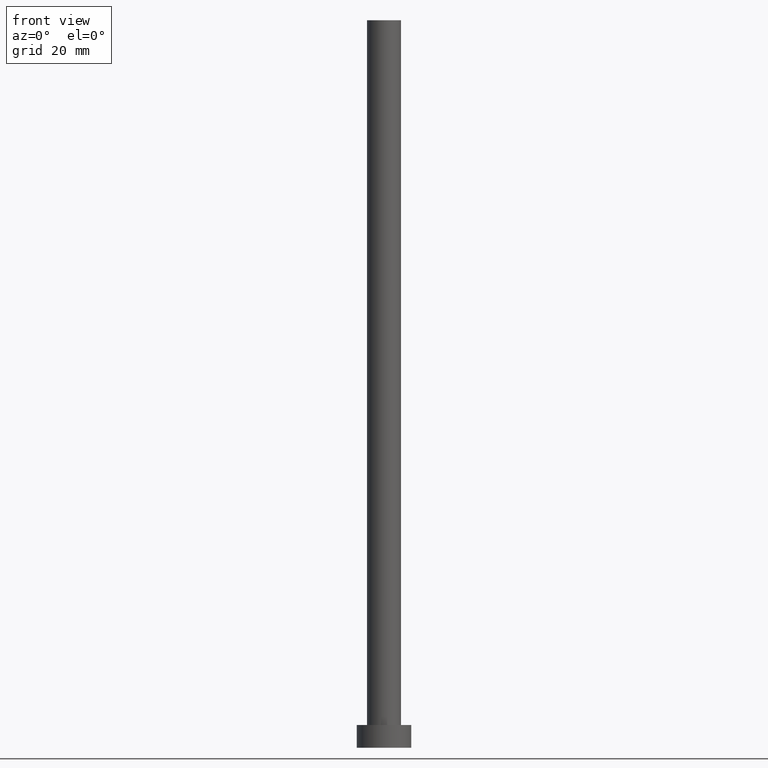
[diagram: clean part render]
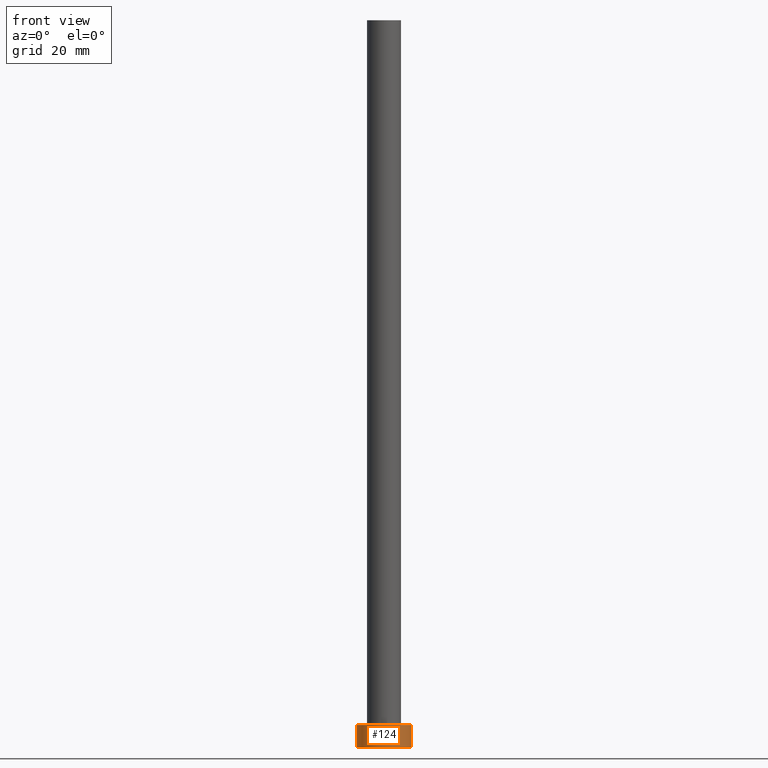
[diagram: same view with one face highlighted and labeled with its STEP entity id]
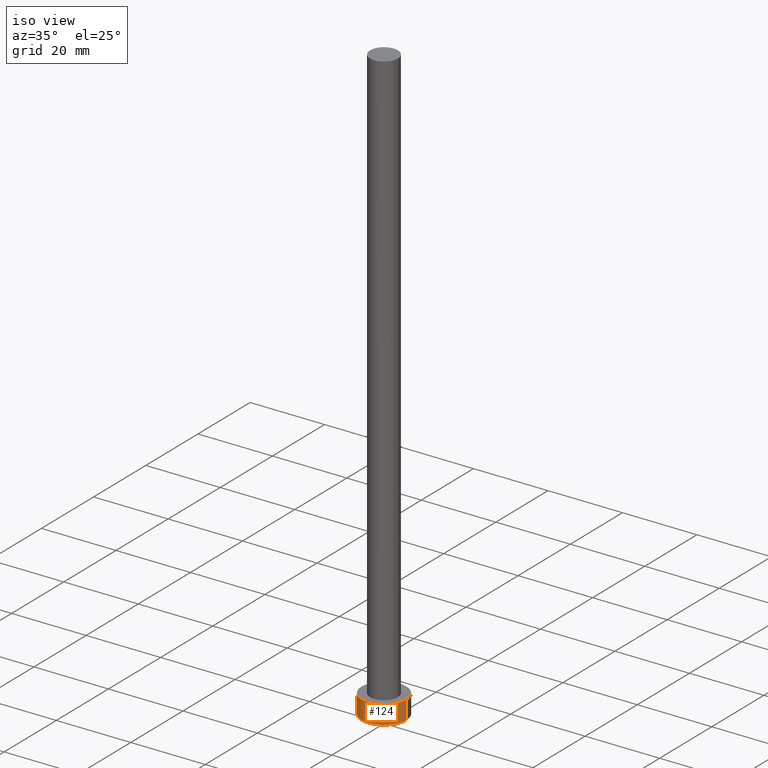
[diagram: same view with one face highlighted and labeled with its STEP entity id]
A machine part, front view. The second image highlights one B-rep face of the part: STEP entity #124.
A second angle (iso view) of the same face is appended — the face is thin or edge-on in the first view.
In plain terms, the highlighted cylindrical surface (edge-blend (fillet) strip) has radius 6 mm, axis along (-0, -0, -1).
Its self-contained STEP definition (entity closure, byte-faithful):
#3 = AXIS2_PLACEMENT_3D ( 'NONE', #227, #102, #70 ) ;
#4 = CARTESIAN_POINT ( 'NONE',  ( 6.000000000000000888, 7.347880794884120722E-16, 0.000000000000000000 ) ) ;
#5 = CARTESIAN_POINT ( 'NONE',  ( 0.000000000000000000, 0.000000000000000000, 5.000000000000000000 ) ) ;
#16 = DIRECTION ( 'NONE',  ( -1.000000000000000000, 0.000000000000000000, 0.000000000000000000 ) ) ;
#23 = ORIENTED_EDGE ( 'NONE', *, *, #237, .T. ) ;
#36 = DIRECTION ( 'NONE',  ( -0.000000000000000000, -0.000000000000000000, -1.000000000000000000 ) ) ;
#45 = ORIENTED_EDGE ( 'NONE', *, *, #71, .F. ) ;
#53 = EDGE_CURVE ( 'NONE', #247, #160, #196, .T. ) ;
#58 = ORIENTED_EDGE ( 'NONE', *, *, #53, .F. ) ;
#70 = DIRECTION ( 'NONE',  ( 1.000000000000000000, 0.000000000000000000, 0.000000000000000000 ) ) ;
#71 = EDGE_CURVE ( 'NONE', #77, #247, #130, .T. ) ;
#72 = CARTESIAN_POINT ( 'NONE',  ( 0.000000000000000000, 0.000000000000000000, 5.000000000000000000 ) ) ;
#77 = VERTEX_POINT ( 'NONE', #179 ) ;
#78 = EDGE_CURVE ( 'NONE', #236, #160, #198, .T. ) ;
#99 = FACE_OUTER_BOUND ( 'NONE', #181, .T. ) ;
#100 = CARTESIAN_POINT ( 'NONE',  ( 6.000000000000000888, 7.347880794884120722E-16, 5.000000000000000000 ) ) ;
#102 = DIRECTION ( 'NONE',  ( 0.000000000000000000, 0.000000000000000000, 1.000000000000000000 ) ) ;
#112 = LINE ( 'NONE', #192, #223 ) ;
#120 = AXIS2_PLACEMENT_3D ( 'NONE', #72, #36, #16 ) ;
#121 = ORIENTED_EDGE ( 'NONE', *, *, #78, .T. ) ;
#124 = ADVANCED_FACE ( 'NONE', ( #99 ), #241, .T. ) ;
#130 = CIRCLE ( 'NONE', #203, 6.000000000000000888 ) ;
#133 = CARTESIAN_POINT ( 'NONE',  ( 6.000000000000000888, 7.347880794884120722E-16, 5.000000000000000000 ) ) ;
#136 = DIRECTION ( 'NONE',  ( -0.000000000000000000, -0.000000000000000000, -1.000000000000000000 ) ) ;
#159 = DIRECTION ( 'NONE',  ( 1.000000000000000000, 0.000000000000000000, 0.000000000000000000 ) ) ;
#160 = VERTEX_POINT ( 'NONE', #4 ) ;
#173 = DIRECTION ( 'NONE',  ( 0.000000000000000000, 0.000000000000000000, 1.000000000000000000 ) ) ;
#174 = DIRECTION ( 'NONE',  ( -0.000000000000000000, -0.000000000000000000, -1.000000000000000000 ) ) ;
#179 = CARTESIAN_POINT ( 'NONE',  ( -6.000000000000000888, 0.000000000000000000, 5.000000000000000000 ) ) ;
#181 = EDGE_LOOP ( 'NONE', ( #58, #45, #23, #121 ) ) ;
#192 = CARTESIAN_POINT ( 'NONE',  ( -6.000000000000000888, 0.000000000000000000, 5.000000000000000000 ) ) ;
#196 = LINE ( 'NONE', #133, #239 ) ;
#198 = CIRCLE ( 'NONE', #3, 6.000000000000000888 ) ;
#203 = AXIS2_PLACEMENT_3D ( 'NONE', #5, #173, #159 ) ;
#210 = CARTESIAN_POINT ( 'NONE',  ( -6.000000000000000888, 0.000000000000000000, 0.000000000000000000 ) ) ;
#223 = VECTOR ( 'NONE', #174, 1000.000000000000000 ) ;
#227 = CARTESIAN_POINT ( 'NONE',  ( 0.000000000000000000, 0.000000000000000000, 0.000000000000000000 ) ) ;
#236 = VERTEX_POINT ( 'NONE', #210 ) ;
#237 = EDGE_CURVE ( 'NONE', #77, #236, #112, .T. ) ;
#239 = VECTOR ( 'NONE', #136, 1000.000000000000000 ) ;
#241 = CYLINDRICAL_SURFACE ( 'NONE', #120, 6.000000000000000888 ) ;
#247 = VERTEX_POINT ( 'NONE', #100 ) ;